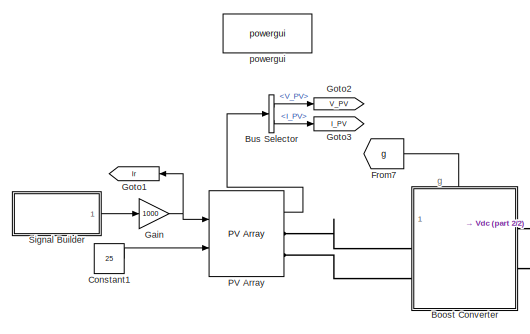
[diagram: root canvas - part 1/2, top left region]
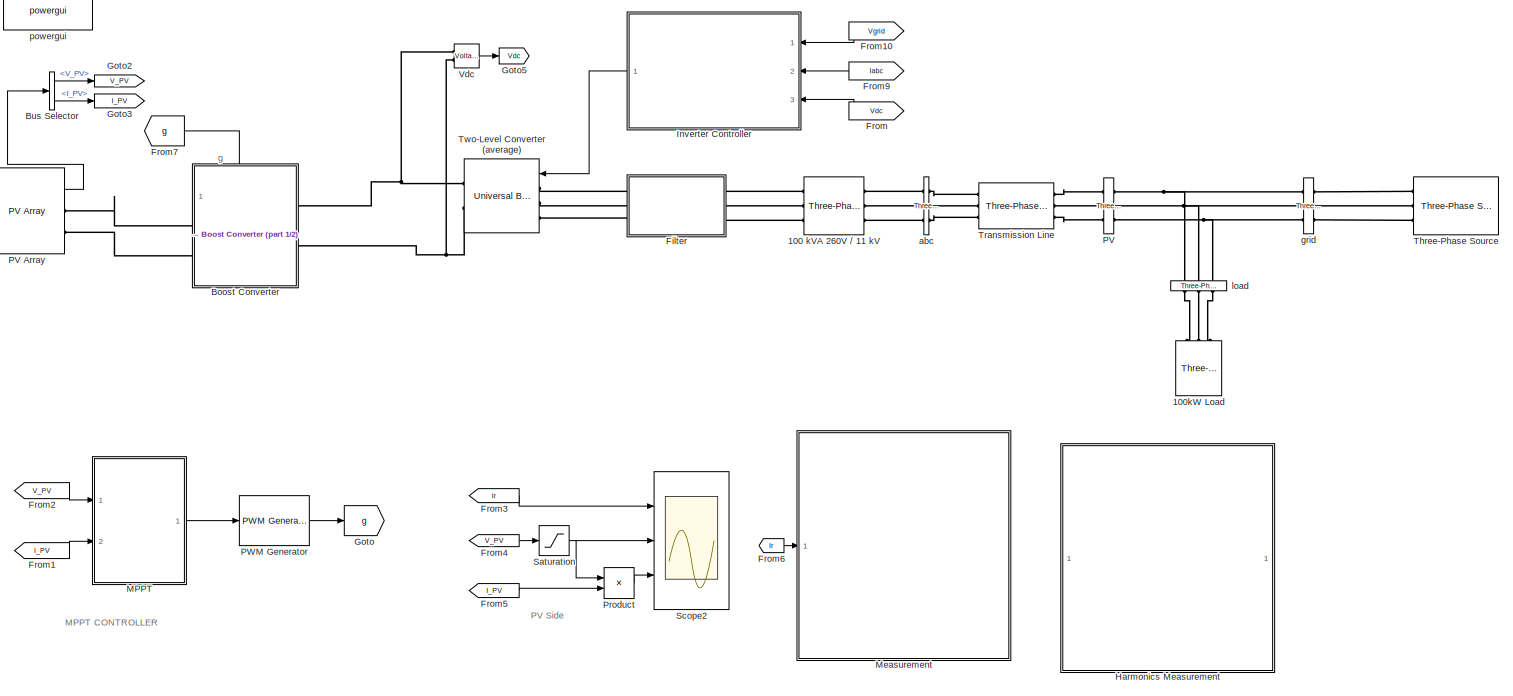
[diagram: root canvas - part 2/2, most of the canvas]
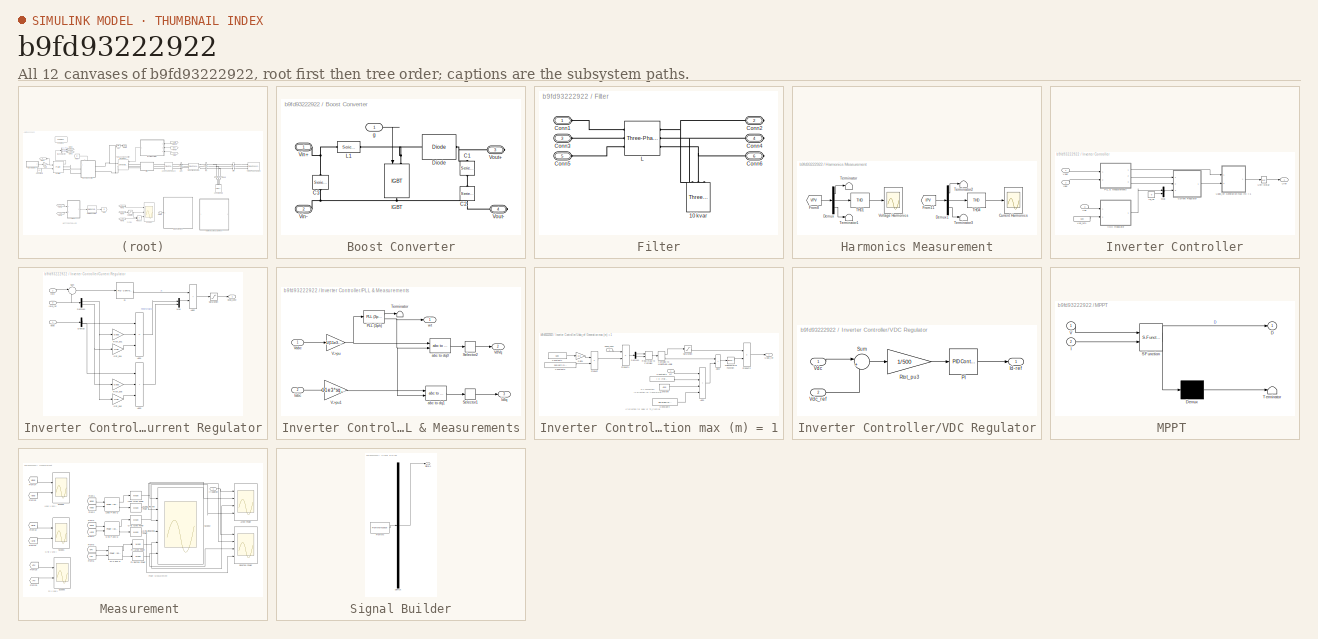
[diagram: thumbnail index - all 12 canvases of the model, root first then tree order]
MODEL slx_b9fd93222922
KIND model
CONFIG AbsTol = auto
CONFIG EnableMultiTasking = off
CONFIG FixedStep = auto
CONFIG MaxStep = auto
CONFIG MinStep = auto
CONFIG RelTol = 1e-3
CONFIG SampleTimeConstraint = Unconstrained
CONFIG SolverName = VariableStepAuto
CONFIG StartTime = 0.0
CONFIG StopTime = 10
BLOCK [Reference] 100 kVA 260V // 11 kV  REF=spsThreePhaseTransformerTwoWindingsLib/Three-Phase
Transformer
(Two Windings)
  AttributesFormatString = \n
  Ports = [0, 0, 0, 0, 0, 3, 3]
  SourceBlock = spsThreePhaseTransformerTwoWindingsLib/Three-Phase\nTransformer\n(Two Windings)
  SourceProductBaseCode = PS
  SourceType = Three-Phase Transformer (Two Windings)
BLOCK [Reference] 100kW Load  REF=spsThreePhaseParallelRLCLoadLib/Three-Phase
Parallel RLC Load
  AttributesFormatString = \n
  NameLocation = right
  Ports = [0, 0, 0, 0, 0, 3]
  SourceBlock = spsThreePhaseParallelRLCLoadLib/Three-Phase\nParallel RLC Load
  SourceProductBaseCode = PS
  SourceType = Three-Phase Parallel RLC Load
BLOCK [SubSystem] Boost Converter
  PortSchema = {"entries":[{"content":{"sides":[{"content":{"connectorIds":["LConn1","LConn2"]},"type":"ConnectorPlacement.EquallySpacedRectSide","uuid":"47139609-9da0-487f-b3c1-66b1e6abf5f1"},{"content":{"connectorIds":["RConn1","RConn2"],"side":"RIGHT"},"type":"ConnectorPlacement.EquallySpacedRectSide","uuid":"7d163bfc-2439-4f5f-a655-df1969a60e03"},{"content":{"connectorIds":["In1"],"side":"TOP"},"type":"Conne...<+268ch>
  Ports = [1, 0, 0, 0, 0, 2, 2]
  RequestExecContextInheritance = off
BLOCK [Reference] Boost Converter/C1  REF=spsSeriesRLCBranchLib/Series RLC Branch
  AttributesFormatString = \n
  NameLocation = left
  Ports = [0, 0, 0, 0, 0, 1, 1]
  SourceBlock = spsSeriesRLCBranchLib/Series RLC Branch
  SourceProductBaseCode = PS
  SourceType = Series RLC Branch
BLOCK [Reference] Boost Converter/C2  REF=spsSeriesRLCBranchLib/Series RLC Branch
  AttributesFormatString = \n
  NameLocation = left
  Ports = [0, 0, 0, 0, 0, 1, 1]
  SourceBlock = spsSeriesRLCBranchLib/Series RLC Branch
  SourceProductBaseCode = PS
  SourceType = Series RLC Branch
BLOCK [Reference] Boost Converter/C3  REF=spsSeriesRLCBranchLib/Series RLC Branch
  AttributesFormatString = \n
  NameLocation = left
  Ports = [0, 0, 0, 0, 0, 1, 1]
  SourceBlock = spsSeriesRLCBranchLib/Series RLC Branch
  SourceProductBaseCode = PS
  SourceType = Series RLC Branch
BLOCK [Reference] Boost Converter/Diode  REF=spsDiodeLib/Diode
  Ports = [0, 0, 0, 0, 0, 1, 1]
  SourceBlock = spsDiodeLib/Diode
  SourceProductBaseCode = PS
  SourceType = Diode
BLOCK [Reference] Boost Converter/IGBT  REF=spsIGBTLib/IGBT
  NameLocation = left
  Ports = [1, 0, 0, 0, 0, 1, 1]
  SourceBlock = spsIGBTLib/IGBT
  SourceProductBaseCode = PS
  SourceType = IGBT
BLOCK [Reference] Boost Converter/L1  REF=spsSeriesRLCBranchLib/Series RLC Branch
  Ports = [0, 0, 0, 0, 0, 1, 1]
  SourceBlock = spsSeriesRLCBranchLib/Series RLC Branch
  SourceProductBaseCode = PS
  SourceType = Series RLC Branch
BLOCK [PMIOPort] Boost Converter/Vin+
  NameLocation = top
  Side = Left
BLOCK [PMIOPort] Boost Converter/Vin-
  NameLocation = top
  Port = 2
  Side = Left
BLOCK [PMIOPort] Boost Converter/Vout+
  Port = 3
  Side = Right
BLOCK [PMIOPort] Boost Converter/Vout-
  Port = 4
  Side = Right
BLOCK [Inport] Boost Converter/g
BLOCK [BusSelector] Bus Selector
  OutputSignals = V_PV,I_PV
  Ports = [1, 2]
BLOCK [Constant] Constant1
  Value = 25
BLOCK [SubSystem] Filter
  Ports = [0, 0, 0, 0, 0, 3, 3]
  RequestExecContextInheritance = off
BLOCK [Reference] Filter/10 kvar  REF=spsThreePhaseSeriesRLCLoadLib/Three-Phase
Series RLC Load
  AttributesFormatString = \n
  NameLocation = right
  Ports = [0, 0, 0, 0, 0, 3]
  SourceBlock = spsThreePhaseSeriesRLCLoadLib/Three-Phase\nSeries RLC Load
  SourceProductBaseCode = PS
  SourceType = Three-Phase Series RLC Load
BLOCK [PMIOPort] Filter/Conn1
  Side = Left
BLOCK [PMIOPort] Filter/Conn2
  Port = 2
  Side = Right
BLOCK [PMIOPort] Filter/Conn3
  Port = 3
  Side = Left
BLOCK [PMIOPort] Filter/Conn4
  Port = 4
  Side = Right
BLOCK [PMIOPort] Filter/Conn5
  Port = 5
  Side = Left
BLOCK [PMIOPort] Filter/Conn6
  Port = 6
  Side = Right
BLOCK [Reference] Filter/L  REF=spsThreePhaseSeriesRLCBranchLib/Three-Phase
Series RLC Branch
  AttributesFormatString = \n
  Ports = [0, 0, 0, 0, 0, 3, 3]
  SourceBlock = spsThreePhaseSeriesRLCBranchLib/Three-Phase\nSeries RLC Branch
  SourceProductBaseCode = PS
  SourceType = Three-Phase Series RLC Branch
BLOCK [From] From
  GotoTag = Vdc
  TagVisibility = global
BLOCK [From] From1
  CloseFcn = tagdialog Close
  GotoTag = I_PV
BLOCK [From] From10
  CloseFcn = tagdialog Close
  GotoTag = Vgrid
  TagVisibility = global
BLOCK [From] From2
  CloseFcn = tagdialog Close
  GotoTag = V_PV
BLOCK [From] From3
  GotoTag = Ir
  NameLocation = top
BLOCK [From] From4
  GotoTag = V_PV
BLOCK [From] From5
  GotoTag = I_PV
BLOCK [From] From6
  GotoTag = Ir
  NameLocation = top
BLOCK [From] From7
  GotoTag = g
BLOCK [From] From9
  CloseFcn = tagdialog Close
  GotoTag = Iabc
  TagVisibility = global
BLOCK [Gain] Gain
  Gain = 1000
BLOCK [Goto] Goto
  GotoTag = g
BLOCK [Goto] Goto1
  GotoTag = Ir
  NameLocation = top
BLOCK [Goto] Goto2
  GotoTag = V_PV
BLOCK [Goto] Goto3
  GotoTag = I_PV
BLOCK [Goto] Goto5
  GotoTag = Vdc
  TagVisibility = global
BLOCK [SubSystem] Harmonics Measurement
  Ports = []
  RequestExecContextInheritance = off
BLOCK [Scope] Harmonics Measurement/Current Harmonics
  Floating = off
  NumInputPorts = 1
  Ports = [1]
  ScopeSpecificationString = Simulink.scopes.TimeScopeBlockCfg('CurrentConfiguration', extmgr.ConfigurationSet(extmgr.Configuration('Core','General UI',true,'FigureColor',[1 1 1]),extmgr.Configuration('Core','Source UI',true),extmgr.Configuration('Sources','WiredSimulink',true,'DataLoggingVariableName','ScopeData3'),extmgr.Configuration('Visuals','Time Domain',true,'SerializedDisplays',{struct('MinYLimReal','-0.25692','MaxYLi...<+2230ch>
BLOCK [Demux] Harmonics Measurement/Demux
  Outputs = 3
  Ports = [1, 3]
BLOCK [Demux] Harmonics Measurement/Demux1
  Outputs = 3
  Ports = [1, 3]
BLOCK [From] Harmonics Measurement/From11
  GotoTag = IPV
  TagVisibility = global
BLOCK [From] Harmonics Measurement/From8
  GotoTag = VPV
  TagVisibility = global
BLOCK [Reference] Harmonics Measurement/THD1  REF=spsTHDLib/THD
  Ports = [1, 1]
  SourceBlock = spsTHDLib/THD
  SourceProductBaseCode = PS
  SourceType = THD
BLOCK [Reference] Harmonics Measurement/THD4  REF=spsTHDLib/THD
  Ports = [1, 1]
  SourceBlock = spsTHDLib/THD
  SourceProductBaseCode = PS
  SourceType = THD
BLOCK [Terminator] Harmonics Measurement/Terminator
BLOCK [Terminator] Harmonics Measurement/Terminator1
BLOCK [Terminator] Harmonics Measurement/Terminator2
BLOCK [Terminator] Harmonics Measurement/Terminator3
BLOCK [Scope] Harmonics Measurement/Voltage Harmonics
  Floating = off
  NumInputPorts = 1
  Ports = [1]
  ScopeSpecificationString = Simulink.scopes.TimeScopeBlockCfg('CurrentConfiguration', extmgr.ConfigurationSet(extmgr.Configuration('Core','General UI',true,'FigureColor',[1 1 1]),extmgr.Configuration('Core','Source UI',true),extmgr.Configuration('Sources','WiredSimulink',true,'DataLoggingVariableName','ScopeData2'),extmgr.Configuration('Visuals','Time Domain',true,'SerializedDisplays',{struct('MinYLimReal','-0.00154','MaxYLi...<+2230ch>
BLOCK [SubSystem] Inverter Controller
  Ports = [3, 1]
  RequestExecContextInheritance = off
BLOCK [SubSystem] Inverter Controller/Current Regulator
  Ports = [3, 1]
  RequestExecContextInheritance = off
BLOCK [Sum] Inverter Controller/Current Regulator/Add1
  IconShape = rectangular
  Inputs = ++-
  Ports = [3, 1]
BLOCK [Sum] Inverter Controller/Current Regulator/Add2
  IconShape = rectangular
  Ports = [2, 1]
BLOCK [Sum] Inverter Controller/Current Regulator/Add3
  IconShape = rectangular
  Inputs = +++
  Ports = [3, 1]
BLOCK [Demux] Inverter Controller/Current Regulator/Demux
  Outputs = 2
  Ports = [1, 2]
BLOCK [Demux] Inverter Controller/Current Regulator/Demux1
  Outputs = 2
  Ports = [1, 2]
BLOCK [Inport] Inverter Controller/Current Regulator/IdIq
  Port = 2
  PortDimensions = 2
BLOCK [Inport] Inverter Controller/Current Regulator/IdIq_ref
  Port = 3
  PortDimensions = 2
BLOCK [Gain] Inverter Controller/Current Regulator/Ltot_pu1
  Gain = 0.06
  OutDataTypeStr = Inherit: Same as input
  ParamDataTypeStr = Inherit: Same as input
  SaturateOnIntegerOverflow = on
BLOCK [Gain] Inverter Controller/Current Regulator/Ltot_pu2
  Gain = 0.06
  OutDataTypeStr = Inherit: Same as input
  ParamDataTypeStr = Inherit: Same as input
  SaturateOnIntegerOverflow = on
BLOCK [Mux] Inverter Controller/Current Regulator/Mux
  DisplayOption = bar
  Inputs = 2
  Ports = [2, 1]
BLOCK [Reference] Inverter Controller/Current Regulator/PI  REF=pid_lib/PID Controller
  Ports = [1, 1]
  SourceBlock = pid_lib/PID Controller
  SourceProductBaseCode = SL
  SourceType = PID 1dof
BLOCK [Gain] Inverter Controller/Current Regulator/Rtot_pu1
  Gain = 0.002
  NameLocation = top
  OutDataTypeStr = Inherit: Same as input
  ParamDataTypeStr = Inherit: Same as input
  SaturateOnIntegerOverflow = on
BLOCK [Gain] Inverter Controller/Current Regulator/Rtot_pu5
  Gain = 0.002
  NameLocation = top
  OutDataTypeStr = Inherit: Same as input
  ParamDataTypeStr = Inherit: Same as input
  SaturateOnIntegerOverflow = on
BLOCK [Saturate] Inverter Controller/Current Regulator/Saturation
  LowerLimit = -2
  UpperLimit = 2
BLOCK [Sum] Inverter Controller/Current Regulator/Sum
  Inputs = |-+
  Ports = [2, 1]
BLOCK [Inport] Inverter Controller/Current Regulator/VdVq
  PortDimensions = 2
BLOCK [Outport] Inverter Controller/Current Regulator/VdVq_conv
  VectorParamsAs1DForOutWhenUnconnected = off
BLOCK [Inport] Inverter Controller/Iabc
  Port = 2
  PortDimensions = 3
BLOCK [Constant] Inverter Controller/Iq_ref
  Value = 0
BLOCK [Mux] Inverter Controller/Mux
  DisplayOption = bar
  Inputs = 2
  Ports = [2, 1]
BLOCK [SubSystem] Inverter Controller/PLL & Measurements
  Ports = [2, 3]
  RequestExecContextInheritance = off
BLOCK [Inport] Inverter Controller/PLL & Measurements/Iabc
  Port = 2
BLOCK [Outport] Inverter Controller/PLL & Measurements/IdIq
  Port = 3
  VectorParamsAs1DForOutWhenUnconnected = off
BLOCK [Reference] Inverter Controller/PLL & Measurements/PLL (3ph)  REF=spsPLL3phLib/PLL
(3ph)
  Ports = [1, 2]
  SourceBlock = spsPLL3phLib/PLL\n(3ph)
  SourceProductBaseCode = PS
  SourceType = PLL (3ph)
BLOCK [Selector] Inverter Controller/PLL & Measurements/Selector1
  IndexOptions = Index vector (dialog)
  Indices = [1 2]
  InputPortWidth = 3
  OutputSizes = 1
  Ports = [1, 1]
BLOCK [Selector] Inverter Controller/PLL & Measurements/Selector2
  IndexOptions = Index vector (dialog)
  Indices = [1 2]
  InputPortWidth = 3
  OutputSizes = 1
  Ports = [1, 1]
BLOCK [Terminator] Inverter Controller/PLL & Measurements/Terminator
BLOCK [Gain] Inverter Controller/PLL & Measurements/V->pu
  Gain = 1/(11e3*sqrt(2)/sqrt(3))
  OutDataTypeStr = Inherit: Same as input
  ParamDataTypeStr = Inherit: Same as input
  SaturateOnIntegerOverflow = on
BLOCK [Gain] Inverter Controller/PLL & Measurements/V->pu1
  Gain = 11e3*sqrt(3)/100e3/sqrt(2)
  OutDataTypeStr = Inherit: Same as input
  ParamDataTypeStr = Inherit: Same as input
  SaturateOnIntegerOverflow = on
BLOCK [Inport] Inverter Controller/PLL & Measurements/Vabc
BLOCK [Outport] Inverter Controller/PLL & Measurements/VdVq
  Port = 2
  VectorParamsAs1DForOutWhenUnconnected = off
BLOCK [Reference] Inverter Controller/PLL & Measurements/abc to dq0  REF=spsabctodq0Lib/abc to dq0
  Ports = [2, 1]
  SourceBlock = spsabctodq0Lib/abc to dq0
  SourceProductBaseCode = PS
  SourceType = abc to dq0 Transformation
BLOCK [Reference] Inverter Controller/PLL & Measurements/abc to dq1  REF=spsabctodq0Lib/abc to dq0
  Ports = [2, 1]
  SourceBlock = spsabctodq0Lib/abc to dq0
  SourceProductBaseCode = PS
  SourceType = abc to dq0 Transformation
BLOCK [Outport] Inverter Controller/PLL & Measurements/wt
  VectorParamsAs1DForOutWhenUnconnected = off
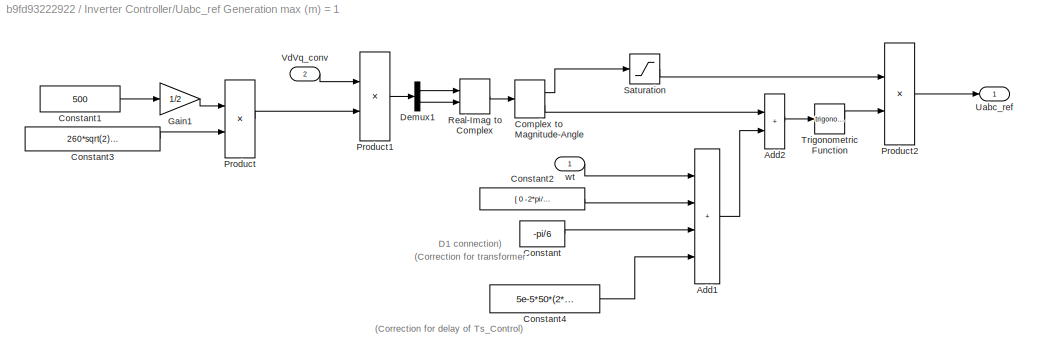
BLOCK [SubSystem] Inverter Controller/Uabc_ref Generation max (m) = 1
  Ports = [2, 1]
  RequestExecContextInheritance = off
BLOCK [Sum] Inverter Controller/Uabc_ref Generation max (m) = 1/Add1
  IconShape = rectangular
  Inputs = ++++
  Ports = [4, 1]
BLOCK [Sum] Inverter Controller/Uabc_ref Generation max (m) = 1/Add2
  IconShape = rectangular
  Ports = [2, 1]
BLOCK [ComplexToMagnitudeAngle] Inverter Controller/Uabc_ref Generation max (m) = 1/Complex to Magnitude-Angle
  Ports = [1, 2]
BLOCK [Constant] Inverter Controller/Uabc_ref Generation max (m) = 1/Constant
  Value = -pi/6
BLOCK [Constant] Inverter Controller/Uabc_ref Generation max (m) = 1/Constant1
  Value = 500
BLOCK [Constant] Inverter Controller/Uabc_ref Generation max (m) = 1/Constant2
  Value = [ 0  -2*pi/3  2*pi/3  ]
BLOCK [Constant] Inverter Controller/Uabc_ref Generation max (m) = 1/Constant3
  Value = 260*sqrt(2)/sqrt(3)
BLOCK [Constant] Inverter Controller/Uabc_ref Generation max (m) = 1/Constant4
  Value = 5e-5*50*(2*pi)
BLOCK [Demux] Inverter Controller/Uabc_ref Generation max (m) = 1/Demux1
  Outputs = 2
  Ports = [1, 2]
BLOCK [Gain] Inverter Controller/Uabc_ref Generation max (m) = 1/Gain1
  Gain = 1/2
BLOCK [Product] Inverter Controller/Uabc_ref Generation max (m) = 1/Product
  Inputs = */
  Ports = [2, 1]
  RndMeth = Zero
BLOCK [Product] Inverter Controller/Uabc_ref Generation max (m) = 1/Product1
  Inputs = */
  Ports = [2, 1]
  RndMeth = Zero
BLOCK [Product] Inverter Controller/Uabc_ref Generation max (m) = 1/Product2
  Inputs = **
  Ports = [2, 1]
  RndMeth = Zero
BLOCK [RealImagToComplex] Inverter Controller/Uabc_ref Generation max (m) = 1/Real-Imag to Complex
  Ports = [2, 1]
BLOCK [Saturate] Inverter Controller/Uabc_ref Generation max (m) = 1/Saturation
  LowerLimit = 0
  UpperLimit = 1
BLOCK [Trigonometry] Inverter Controller/Uabc_ref Generation max (m) = 1/Trigonometric Function
  Ports = [1, 1]
BLOCK [Outport] Inverter Controller/Uabc_ref Generation max (m) = 1/Uabc_ref
  VectorParamsAs1DForOutWhenUnconnected = off
BLOCK [Inport] Inverter Controller/Uabc_ref Generation max (m) = 1/VdVq_conv
  Port = 2
BLOCK [Inport] Inverter Controller/Uabc_ref Generation max (m) = 1/wt
BLOCK [UnitDelay] Inverter Controller/Unit Delay
  HasFrameUpgradeWarning = on
  SampleTime = 5e-5
BLOCK [Outport] Inverter Controller/Uref
  NameLocation = top
  VectorParamsAs1DForOutWhenUnconnected = off
BLOCK [SubSystem] Inverter Controller/VDC Regulator
  Ports = [2, 1]
  RequestExecContextInheritance = off
BLOCK [Outport] Inverter Controller/VDC Regulator/Id-ref
BLOCK [Reference] Inverter Controller/VDC Regulator/PI  REF=pid_lib/PID Controller
  Ports = [1, 1]
  SourceBlock = pid_lib/PID Controller
  SourceProductBaseCode = SL
  SourceType = PID 1dof
BLOCK [Gain] Inverter Controller/VDC Regulator/Rtot_pu3
  Gain = 1/500
  OutDataTypeStr = Inherit: Same as input
  ParamDataTypeStr = Inherit: Same as input
  SaturateOnIntegerOverflow = on
BLOCK [Sum] Inverter Controller/VDC Regulator/Sum
  Inputs = |+-
  Ports = [2, 1]
BLOCK [Inport] Inverter Controller/VDC Regulator/Vdc
  PortDimensions = 1
BLOCK [Inport] Inverter Controller/VDC Regulator/Vdc_ref
  Port = 2
  PortDimensions = 1
BLOCK [Inport] Inverter Controller/Vabc
  PortDimensions = 3
BLOCK [Inport] Inverter Controller/Vdc
  Port = 3
  PortDimensions = 1
BLOCK [Constant] Inverter Controller/Vdc_ref1
  Value = 500
BLOCK [SubSystem] MPPT 
  ErrorFcn = Stateflow.Translate.translate
  PermitHierarchicalResolution = ExplicitOnly
  Ports = [2, 1]
  RequestExecContextInheritance = off
  SFBlockType = MATLAB Function
  TreatAsAtomicUnit = on
BLOCK [Demux] MPPT / Demux 
  Outputs = 1
  Ports = [1, 1]
BLOCK [S-Function] MPPT / SFunction 
  EnableBusSupport = on
  FunctionName = sf_sfun
  PortCounts = [2 2]
  Ports = [2, 2]
  SFcnIsStateOwnerBlock = off
  SFunctionDeploymentMode = off
  Tag = Stateflow S-Function 4
BLOCK [Terminator] MPPT / Terminator 
BLOCK [Outport] MPPT /D
  VectorParamsAs1DForOutWhenUnconnected = off
BLOCK [Inport] MPPT /I
  Port = 2
BLOCK [Inport] MPPT /V
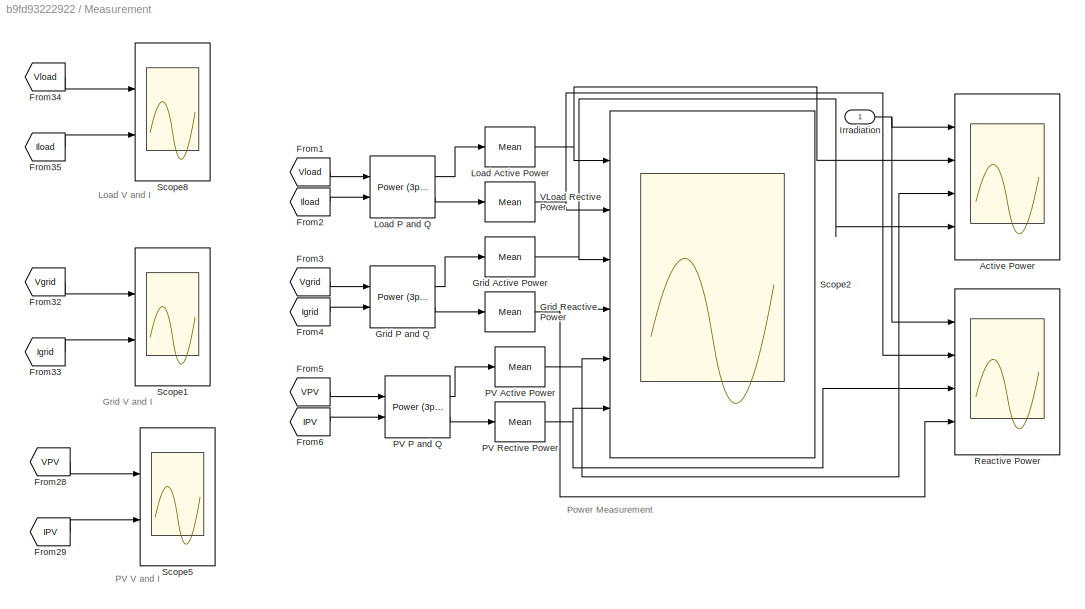
BLOCK [SubSystem] Measurement 
  Ports = [1]
  RequestExecContextInheritance = off
BLOCK [Scope] Measurement /Active Power
  Floating = off
  NumInputPorts = 4
  Ports = [4]
  ScopeSpecificationString = Simulink.scopes.TimeScopeBlockCfg('CurrentConfiguration', extmgr.ConfigurationSet(extmgr.Configuration('Core','General UI',true,'FigureColor',[1 1 1]),extmgr.Configuration('Core','Source UI',true),extmgr.Configuration('Sources','WiredSimulink',true,'DataLoggingVariableName','power','DataLogging',true,'DataLoggingSaveFormat','StructureWithTime'),extmgr.Configuration('Visuals','Time Domain',true,'Se...<+4727ch>
BLOCK [From] Measurement /From1
  GotoTag = Vload
  TagVisibility = global
BLOCK [From] Measurement /From2
  GotoTag = Iload
  TagVisibility = global
BLOCK [From] Measurement /From28
  GotoTag = VPV
  TagVisibility = global
BLOCK [From] Measurement /From29
  GotoTag = IPV
  TagVisibility = global
BLOCK [From] Measurement /From3
  GotoTag = Vgrid
  TagVisibility = global
BLOCK [From] Measurement /From32
  GotoTag = Vgrid
  TagVisibility = global
BLOCK [From] Measurement /From33
  GotoTag = Igrid
  TagVisibility = global
BLOCK [From] Measurement /From34
  GotoTag = Vload
  TagVisibility = global
BLOCK [From] Measurement /From35
  GotoTag = Iload
  TagVisibility = global
BLOCK [From] Measurement /From4
  GotoTag = Igrid
  TagVisibility = global
BLOCK [From] Measurement /From5
  GotoTag = VPV
  TagVisibility = global
BLOCK [From] Measurement /From6
  GotoTag = IPV
  TagVisibility = global
BLOCK [Reference] Measurement /Grid Active Power  REF=spsMeanLib/Mean
  Ports = [1, 1]
  SourceBlock = spsMeanLib/Mean
  SourceProductBaseCode = PS
  SourceType = Mean
BLOCK [Reference] Measurement /Grid P and Q  REF=spsPower3phInstantaneousLib/Power
(3ph, Instantaneous)
  Ports = [2, 2]
  SourceBlock = spsPower3phInstantaneousLib/Power\n(3ph, Instantaneous)
  SourceProductBaseCode = PS
  SourceType = Power (3ph, Instantaneous)
BLOCK [Reference] Measurement /Grid Reactive Power  REF=spsMeanLib/Mean
  Ports = [1, 1]
  SourceBlock = spsMeanLib/Mean
  SourceProductBaseCode = PS
  SourceType = Mean
BLOCK [Inport] Measurement /Irradiation
BLOCK [Reference] Measurement /Load Active Power  REF=spsMeanLib/Mean
  Ports = [1, 1]
  SourceBlock = spsMeanLib/Mean
  SourceProductBaseCode = PS
  SourceType = Mean
BLOCK [Reference] Measurement /Load P and Q  REF=spsPower3phInstantaneousLib/Power
(3ph, Instantaneous)
  Ports = [2, 2]
  SourceBlock = spsPower3phInstantaneousLib/Power\n(3ph, Instantaneous)
  SourceProductBaseCode = PS
  SourceType = Power (3ph, Instantaneous)
BLOCK [Reference] Measurement /PV Active Power  REF=spsMeanLib/Mean
  Ports = [1, 1]
  SourceBlock = spsMeanLib/Mean
  SourceProductBaseCode = PS
  SourceType = Mean
BLOCK [Reference] Measurement /PV P and Q  REF=spsPower3phInstantaneousLib/Power
(3ph, Instantaneous)
  Ports = [2, 2]
  SourceBlock = spsPower3phInstantaneousLib/Power\n(3ph, Instantaneous)
  SourceProductBaseCode = PS
  SourceType = Power (3ph, Instantaneous)
BLOCK [Reference] Measurement /PV Rective Power  REF=spsMeanLib/Mean
  Ports = [1, 1]
  SourceBlock = spsMeanLib/Mean
  SourceProductBaseCode = PS
  SourceType = Mean
BLOCK [Scope] Measurement /Reactive Power
  Floating = off
  NumInputPorts = 4
  Ports = [4]
  ScopeSpecificationString = Simulink.scopes.TimeScopeBlockCfg('CurrentConfiguration', extmgr.ConfigurationSet(extmgr.Configuration('Core','General UI',true,'FigureColor',[1 1 1]),extmgr.Configuration('Core','Source UI',true),extmgr.Configuration('Sources','WiredSimulink',true,'DataLoggingVariableName','power1','DataLogging',true,'DataLoggingSaveFormat','StructureWithTime'),extmgr.Configuration('Visuals','Time Domain',true,'S...<+4734ch>
BLOCK [Scope] Measurement /Scope1
  Floating = off
  NumInputPorts = 2
  Ports = [2]
  ScopeSpecificationString = Simulink.scopes.TimeScopeBlockCfg('CurrentConfiguration', extmgr.ConfigurationSet(extmgr.Configuration('Core','General UI',true,'FigureColor',[1 1 1]),extmgr.Configuration('Core','Source UI',true),extmgr.Configuration('Sources','WiredSimulink',true,'DataLoggingVariableName','ScopeData1'),extmgr.Configuration('Visuals','Time Domain',true,'SerializedDisplays',{struct('MinYLimReal','-11050.31813','Ma...<+3884ch>
BLOCK [Scope] Measurement /Scope2
  Floating = off
  NumInputPorts = 6
  Ports = [6]
  ScopeSpecificationString = Simulink.scopes.TimeScopeBlockCfg('CurrentConfiguration', extmgr.ConfigurationSet(extmgr.Configuration('Core','General UI',true,'FigureColor',[1 1 1]),extmgr.Configuration('Core','Source UI',true),extmgr.Configuration('Sources','WiredSimulink',true,'DataLoggingVariableName','ScopeData1'),extmgr.Configuration('Visuals','Time Domain',true,'SerializedDisplays',{struct('MinYLimReal','-12580.85549','Ma...<+6473ch>
BLOCK [Scope] Measurement /Scope5
  Floating = off
  NumInputPorts = 2
  Ports = [2]
  ScopeSpecificationString = Simulink.scopes.TimeScopeBlockCfg('CurrentConfiguration', extmgr.ConfigurationSet(extmgr.Configuration('Core','General UI',true,'FigureColor',[1 1 1]),extmgr.Configuration('Core','Source UI',true),extmgr.Configuration('Sources','WiredSimulink',true,'DataLoggingVariableName','ScopeData2'),extmgr.Configuration('Visuals','Time Domain',true,'SerializedDisplays',{struct('MinYLimReal','-18119.42614','Ma...<+3884ch>
BLOCK [Scope] Measurement /Scope8
  Floating = off
  NumInputPorts = 2
  Ports = [2]
  ScopeSpecificationString = Simulink.scopes.TimeScopeBlockCfg('CurrentConfiguration', extmgr.ConfigurationSet(extmgr.Configuration('Core','General UI',true,'FigureColor',[1 1 1]),extmgr.Configuration('Core','Source UI',true),extmgr.Configuration('Sources','WiredSimulink',true),extmgr.Configuration('Visuals','Time Domain',true,'SerializedDisplays',{struct('MinYLimReal','-11284.33495','MaxYLimReal','11277.36542','YLabelReal','...<+3845ch>
BLOCK [Reference] Measurement /VLoad Rective Power  REF=spsMeanLib/Mean
  Ports = [1, 1]
  SourceBlock = spsMeanLib/Mean
  SourceProductBaseCode = PS
  SourceType = Mean
BLOCK [Reference] PV  REF=spsThreePhaseVIMeasurementLib/Three-Phase
V-I Measurement
  Ports = [0, 0, 0, 0, 0, 3, 3]
  SourceBlock = spsThreePhaseVIMeasurementLib/Three-Phase\nV-I Measurement
  SourceProductBaseCode = PS
  SourceType = Three-Phase VI Measurement
BLOCK [Reference] PV Array  REF=spsPVArrayLib/PV Array
  Ports = [2, 1, 0, 0, 0, 0, 2]
  SourceBlock = spsPVArrayLib/PV Array
  SourceProductBaseCode = PS
  SourceType = PV array
BLOCK [Reference] PWM Generator  REF=eePwmGenerator/PWM Generator
  Ports = [1, 1]
  SourceBlock = eePwmGenerator/PWM Generator
  SourceProductBaseCode = PS
  SourceType = PWM Generator
BLOCK [Product] Product
  Ports = [2, 1]
BLOCK [Saturate] Saturation
  LowerLimit = 280
  UpperLimit = 285
BLOCK [Scope] Scope2
  Floating = off
  NumInputPorts = 3
  Ports = [3]
  ScopeSpecificationString = Simulink.scopes.TimeScopeBlockCfg('CurrentConfiguration', extmgr.ConfigurationSet(extmgr.Configuration('Core','General UI',true,'FigureColor',[1 1 1]),extmgr.Configuration('Core','Source UI',true),extmgr.Configuration('Sources','WiredSimulink',true,'DataLoggingVariableName','ScopeData4','SampleTime','5e-6'),extmgr.Configuration('Visuals','Time Domain',true,'SerializedDisplays',{struct('MinYLimReal...<+4596ch>
BLOCK [SubSystem] Signal Builder
  ClipboardFcn = sigbuilder_block('clipboard');
  CloseFcn = sigbuilder_block('close');
  ContinueFcn = sigbuilder_block('continue');
  CopyFcn = sigbuilder_block('copy');
  DeleteFcn = sigbuilder_block('delete');
  LoadFcn = sigbuilder_block('load');
  MaskHideContents = on
  ModelCloseFcn = sigbuilder_block('modelClose');
  NameChangeFcn = sigbuilder_block('namechange');
  OpenFcn = sigbuilder_block('open',[437.6 199.2 550.4 400 ]);
  PauseFcn = sigbuilder_block('pause');
  Ports = [0, 1]
  PreSaveFcn = sigbuilder_block('preSave');
  RequestExecContextInheritance = off
  StartFcn = sigbuilder_block('start');
  StopFcn = sigbuilder_block('stop');
  Tag = STV Subsys
BLOCK [Demux] Signal Builder/Demux
  DisplayOption = none
  Outputs = 1
  Ports = [1, 1]
  Tag = STV Demux
BLOCK [FromWorkspace] Signal Builder/FromWs
  Tag = STV FromWs
  VariableName = tuvar
BLOCK [Outport] Signal Builder/Signal 1
  Tag = STV Outport
BLOCK [Reference] Three-Phase Source  REF=spsThreePhaseSourceLib/Three-Phase Source
  NameLocation = top
  Ports = [0, 0, 0, 0, 0, 0, 3]
  SourceBlock = spsThreePhaseSourceLib/Three-Phase Source
  SourceProductBaseCode = PS
  SourceType = Three-Phase Source
BLOCK [Reference] Transmission Line  REF=spsThreePhasePISectionLineLib/Three-Phase
PI Section Line
  AttributesFormatString = \n
  Ports = [0, 0, 0, 0, 0, 3, 3]
  SourceBlock = spsThreePhasePISectionLineLib/Three-Phase\nPI Section Line
  SourceProductBaseCode = PS
  SourceType = Three-Phase PI Section Line
BLOCK [Reference] Two-Level Converter (average)  REF=spsUniversalBridgeLib/Universal Bridge
  Ports = [1, 0, 0, 0, 0, 3, 2]
  SourceBlock = spsUniversalBridgeLib/Universal Bridge
  SourceProductBaseCode = PS
  SourceType = Universal Bridge
BLOCK [Reference] Vdc   REF=spsVoltageMeasurementLib/Voltage Measurement
  AttributesFormatString = \n
  NameLocation = top
  Ports = [0, 1, 0, 0, 0, 2]
  SourceBlock = spsVoltageMeasurementLib/Voltage Measurement
  SourceProductBaseCode = PS
  SourceType = Voltage Measurement
  Tag = PoWeRsYsTeMmEaSuReMeNt
BLOCK [Reference] abc  REF=spsThreePhaseVIMeasurementLib/Three-Phase
V-I Measurement
  Ports = [0, 0, 0, 0, 0, 3, 3]
  SourceBlock = spsThreePhaseVIMeasurementLib/Three-Phase\nV-I Measurement
  SourceProductBaseCode = PS
  SourceType = Three-Phase VI Measurement
BLOCK [Reference] grid  REF=spsThreePhaseVIMeasurementLib/Three-Phase
V-I Measurement
  Ports = [0, 0, 0, 0, 0, 3, 3]
  SourceBlock = spsThreePhaseVIMeasurementLib/Three-Phase\nV-I Measurement
  SourceProductBaseCode = PS
  SourceType = Three-Phase VI Measurement
BLOCK [Reference] load  REF=spsThreePhaseVIMeasurementLib/Three-Phase
V-I Measurement
  NameLocation = left
  Ports = [0, 0, 0, 0, 0, 3, 3]
  SourceBlock = spsThreePhaseVIMeasurementLib/Three-Phase\nV-I Measurement
  SourceProductBaseCode = PS
  SourceType = Three-Phase VI Measurement
BLOCK [Reference] powergui  REF=spspowerguiLib/powergui
  Ports = []
  Priority = 1
  SourceBlock = spspowerguiLib/powergui
  SourceProductBaseCode = PS
  SourceType = PSB option menu block
ANNOTATION (root): MPPT CONTROLLER
ANNOTATION (root): PV Side
ANNOTATION (root): g
ANNOTATION Inverter Controller/Uabc_ref Generation max (m) = 1: (Correction for delay of Ts_Control)
ANNOTATION Inverter Controller/Uabc_ref Generation max (m) = 1: (Correction for transformer D1 connection)
ANNOTATION Measurement : Grid V and I
ANNOTATION Measurement : Load V and I
ANNOTATION Measurement : PV V and I
ANNOTATION Measurement : Power Measurement
LINE Boost Converter/g:1 -> Boost Converter/IGBT:1
LINE Bus Selector:1 -> Goto2:1
LINE Bus Selector:2 -> Goto3:1
LINE Constant1:1 -> PV Array:2
LINE From10:1 -> Inverter Controller:1
LINE From1:1 -> MPPT :2
LINE From2:1 -> MPPT :1
LINE From3:1 -> Scope2:1
LINE From4:1 -> Saturation:1
LINE From5:1 -> Product:2
LINE From6:1 -> Measurement :1
LINE From7:1 -> Boost Converter:1
LINE From9:1 -> Inverter Controller:2
LINE From:1 -> Inverter Controller:3
NET Gain:1 -> Goto1:1, PV Array:1
LINE Harmonics Measurement/Demux1:1 -> Harmonics Measurement/Terminator2:1
LINE Harmonics Measurement/Demux1:2 -> Harmonics Measurement/THD4:1
LINE Harmonics Measurement/Demux1:3 -> Harmonics Measurement/Terminator3:1
LINE Harmonics Measurement/Demux:1 -> Harmonics Measurement/Terminator:1
LINE Harmonics Measurement/Demux:2 -> Harmonics Measurement/THD1:1
LINE Harmonics Measurement/Demux:3 -> Harmonics Measurement/Terminator1:1
LINE Harmonics Measurement/From11:1 -> Harmonics Measurement/Demux1:1
LINE Harmonics Measurement/From8:1 -> Harmonics Measurement/Demux:1
LINE Harmonics Measurement/THD1:1 -> Harmonics Measurement/Voltage Harmonics:1
LINE Harmonics Measurement/THD4:1 -> Harmonics Measurement/Current Harmonics:1
LINE Inverter Controller/Current Regulator/Add1:1 -> Inverter Controller/Current Regulator/Mux:1
LINE Inverter Controller/Current Regulator/Add2:1 -> Inverter Controller/Current Regulator/Saturation:1
LINE Inverter Controller/Current Regulator/Add3:1 -> Inverter Controller/Current Regulator/Mux:2
NET Inverter Controller/Current Regulator/Demux1:1 -> Inverter Controller/Current Regulator/Ltot_pu2:1, Inverter Controller/Current Regulator/Rtot_pu1:1
NET Inverter Controller/Current Regulator/Demux1:2 -> Inverter Controller/Current Regulator/Ltot_pu1:1, Inverter Controller/Current Regulator/Rtot_pu5:1
LINE Inverter Controller/Current Regulator/Demux:1 -> Inverter Controller/Current Regulator/Add1:1
LINE Inverter Controller/Current Regulator/Demux:2 -> Inverter Controller/Current Regulator/Add3:1
LINE Inverter Controller/Current Regulator/IdIq:1 -> Inverter Controller/Current Regulator/Sum:1
NET Inverter Controller/Current Regulator/IdIq_ref:1 -> Inverter Controller/Current Regulator/Demux1:1, Inverter Controller/Current Regulator/Sum:2
LINE Inverter Controller/Current Regulator/Ltot_pu1:1 -> Inverter Controller/Current Regulator/Add1:3
LINE Inverter Controller/Current Regulator/Ltot_pu2:1 -> Inverter Controller/Current Regulator/Add3:3
LINE Inverter Controller/Current Regulator/Mux:1 -> Inverter Controller/Current Regulator/Add2:2
LINE Inverter Controller/Current Regulator/PI:1 -> Inverter Controller/Current Regulator/Add2:1
LINE Inverter Controller/Current Regulator/Rtot_pu1:1 -> Inverter Controller/Current Regulator/Add1:2
LINE Inverter Controller/Current Regulator/Rtot_pu5:1 -> Inverter Controller/Current Regulator/Add3:2
LINE Inverter Controller/Current Regulator/Saturation:1 -> Inverter Controller/Current Regulator/VdVq_conv:1
LINE Inverter Controller/Current Regulator/Sum:1 -> Inverter Controller/Current Regulator/PI:1
LINE Inverter Controller/Current Regulator/VdVq:1 -> Inverter Controller/Current Regulator/Demux:1
LINE Inverter Controller/Current Regulator:1 -> Inverter Controller/Uabc_ref Generation max (m) = 1:2
LINE Inverter Controller/Iabc:1 -> Inverter Controller/PLL & Measurements:2
LINE Inverter Controller/Iq_ref:1 -> Inverter Controller/Mux:2
LINE Inverter Controller/Mux:1 -> Inverter Controller/Current Regulator:3
LINE Inverter Controller/PLL & Measurements/Iabc:1 -> Inverter Controller/PLL & Measurements/V->pu1:1
LINE Inverter Controller/PLL & Measurements/PLL (3ph):1 -> Inverter Controller/PLL & Measurements/Terminator:1
NET Inverter Controller/PLL & Measurements/PLL (3ph):2 -> Inverter Controller/PLL & Measurements/abc to dq0:2, Inverter Controller/PLL & Measurements/abc to dq1:2, Inverter Controller/PLL & Measurements/wt:1
LINE Inverter Controller/PLL & Measurements/Selector1:1 -> Inverter Controller/PLL & Measurements/IdIq:1
LINE Inverter Controller/PLL & Measurements/Selector2:1 -> Inverter Controller/PLL & Measurements/VdVq:1
LINE Inverter Controller/PLL & Measurements/V->pu1:1 -> Inverter Controller/PLL & Measurements/abc to dq1:1
NET Inverter Controller/PLL & Measurements/V->pu:1 -> Inverter Controller/PLL & Measurements/PLL (3ph):1, Inverter Controller/PLL & Measurements/abc to dq0:1
LINE Inverter Controller/PLL & Measurements/Vabc:1 -> Inverter Controller/PLL & Measurements/V->pu:1
LINE Inverter Controller/PLL & Measurements/abc to dq0:1 -> Inverter Controller/PLL & Measurements/Selector2:1
LINE Inverter Controller/PLL & Measurements/abc to dq1:1 -> Inverter Controller/PLL & Measurements/Selector1:1
LINE Inverter Controller/PLL & Measurements:1 -> Inverter Controller/Uabc_ref Generation max (m) = 1:1
LINE Inverter Controller/PLL & Measurements:2 -> Inverter Controller/Current Regulator:1
LINE Inverter Controller/PLL & Measurements:3 -> Inverter Controller/Current Regulator:2
LINE Inverter Controller/Uabc_ref Generation max (m) = 1/Add1:1 -> Inverter Controller/Uabc_ref Generation max (m) = 1/Add2:2
LINE Inverter Controller/Uabc_ref Generation max (m) = 1/Add2:1 -> Inverter Controller/Uabc_ref Generation max (m) = 1/Trigonometric Function:1
LINE Inverter Controller/Uabc_ref Generation max (m) = 1/Complex to Magnitude-Angle:1 -> Inverter Controller/Uabc_ref Generation max (m) = 1/Saturation:1
LINE Inverter Controller/Uabc_ref Generation max (m) = 1/Complex to Magnitude-Angle:2 -> Inverter Controller/Uabc_ref Generation max (m) = 1/Add2:1
LINE Inverter Controller/Uabc_ref Generation max (m) = 1/Constant1:1 -> Inverter Controller/Uabc_ref Generation max (m) = 1/Gain1:1
LINE Inverter Controller/Uabc_ref Generation max (m) = 1/Constant2:1 -> Inverter Controller/Uabc_ref Generation max (m) = 1/Add1:2
LINE Inverter Controller/Uabc_ref Generation max (m) = 1/Constant3:1 -> Inverter Controller/Uabc_ref Generation max (m) = 1/Product:2
LINE Inverter Controller/Uabc_ref Generation max (m) = 1/Constant4:1 -> Inverter Controller/Uabc_ref Generation max (m) = 1/Add1:4
LINE Inverter Controller/Uabc_ref Generation max (m) = 1/Constant:1 -> Inverter Controller/Uabc_ref Generation max (m) = 1/Add1:3
LINE Inverter Controller/Uabc_ref Generation max (m) = 1/Demux1:1 -> Inverter Controller/Uabc_ref Generation max (m) = 1/Real-Imag to Complex:1
LINE Inverter Controller/Uabc_ref Generation max (m) = 1/Demux1:2 -> Inverter Controller/Uabc_ref Generation max (m) = 1/Real-Imag to Complex:2
LINE Inverter Controller/Uabc_ref Generation max (m) = 1/Gain1:1 -> Inverter Controller/Uabc_ref Generation max (m) = 1/Product:1
LINE Inverter Controller/Uabc_ref Generation max (m) = 1/Product1:1 -> Inverter Controller/Uabc_ref Generation max (m) = 1/Demux1:1
LINE Inverter Controller/Uabc_ref Generation max (m) = 1/Product2:1 -> Inverter Controller/Uabc_ref Generation max (m) = 1/Uabc_ref:1
LINE Inverter Controller/Uabc_ref Generation max (m) = 1/Product:1 -> Inverter Controller/Uabc_ref Generation max (m) = 1/Product1:2
LINE Inverter Controller/Uabc_ref Generation max (m) = 1/Real-Imag to Complex:1 -> Inverter Controller/Uabc_ref Generation max (m) = 1/Complex to Magnitude-Angle:1
LINE Inverter Controller/Uabc_ref Generation max (m) = 1/Saturation:1 -> Inverter Controller/Uabc_ref Generation max (m) = 1/Product2:1
LINE Inverter Controller/Uabc_ref Generation max (m) = 1/Trigonometric Function:1 -> Inverter Controller/Uabc_ref Generation max (m) = 1/Product2:2
LINE Inverter Controller/Uabc_ref Generation max (m) = 1/VdVq_conv:1 -> Inverter Controller/Uabc_ref Generation max (m) = 1/Product1:1
LINE Inverter Controller/Uabc_ref Generation max (m) = 1/wt:1 -> Inverter Controller/Uabc_ref Generation max (m) = 1/Add1:1
LINE Inverter Controller/Uabc_ref Generation max (m) = 1:1 -> Inverter Controller/Unit Delay:1
LINE Inverter Controller/Unit Delay:1 -> Inverter Controller/Uref:1
LINE Inverter Controller/VDC Regulator/PI:1 -> Inverter Controller/VDC Regulator/Id-ref:1
LINE Inverter Controller/VDC Regulator/Rtot_pu3:1 -> Inverter Controller/VDC Regulator/PI:1
LINE Inverter Controller/VDC Regulator/Sum:1 -> Inverter Controller/VDC Regulator/Rtot_pu3:1
LINE Inverter Controller/VDC Regulator/Vdc:1 -> Inverter Controller/VDC Regulator/Sum:1
LINE Inverter Controller/VDC Regulator/Vdc_ref:1 -> Inverter Controller/VDC Regulator/Sum:2
LINE Inverter Controller/VDC Regulator:1 -> Inverter Controller/Mux:1
LINE Inverter Controller/Vabc:1 -> Inverter Controller/PLL & Measurements:1
LINE Inverter Controller/Vdc:1 -> Inverter Controller/VDC Regulator:1
LINE Inverter Controller/Vdc_ref1:1 -> Inverter Controller/VDC Regulator:2
LINE Inverter Controller:1 -> Two-Level Converter (average):1
LINE MPPT :1 -> PWM Generator:1
LINE Measurement /From1:1 -> Measurement /Load P and Q:1
LINE Measurement /From28:1 -> Measurement /Scope5:1
LINE Measurement /From29:1 -> Measurement /Scope5:2
LINE Measurement /From2:1 -> Measurement /Load P and Q:2
LINE Measurement /From32:1 -> Measurement /Scope1:1
LINE Measurement /From33:1 -> Measurement /Scope1:2
LINE Measurement /From34:1 -> Measurement /Scope8:1
LINE Measurement /From35:1 -> Measurement /Scope8:2
LINE Measurement /From3:1 -> Measurement /Grid P and Q:1
LINE Measurement /From4:1 -> Measurement /Grid P and Q:2
LINE Measurement /From5:1 -> Measurement /PV P and Q:1
LINE Measurement /From6:1 -> Measurement /PV P and Q:2
NET Measurement /Grid Active Power:1 -> Measurement /Active Power:4, Measurement /Scope2:3
LINE Measurement /Grid P and Q:1 -> Measurement /Grid Active Power:1
LINE Measurement /Grid P and Q:2 -> Measurement /Grid Reactive Power:1
NET Measurement /Grid Reactive Power:1 -> Measurement /Reactive Power:4, Measurement /Scope2:4
NET Measurement /Irradiation:1 -> Measurement /Active Power:1, Measurement /Reactive Power:1
NET Measurement /Load Active Power:1 -> Measurement /Active Power:2, Measurement /Scope2:1
LINE Measurement /Load P and Q:1 -> Measurement /Load Active Power:1
LINE Measurement /Load P and Q:2 -> Measurement /VLoad Rective Power:1
NET Measurement /PV Active Power:1 -> Measurement /Active Power:3, Measurement /Scope2:5
LINE Measurement /PV P and Q:1 -> Measurement /PV Active Power:1
LINE Measurement /PV P and Q:2 -> Measurement /PV Rective Power:1
NET Measurement /PV Rective Power:1 -> Measurement /Reactive Power:3, Measurement /Scope2:6
NET Measurement /VLoad Rective Power:1 -> Measurement /Reactive Power:2, Measurement /Scope2:2
LINE PV Array:1 -> Bus Selector:1
LINE PWM Generator:1 -> Goto:1
LINE Product:1 -> Scope2:3
NET Saturation:1 -> Product:1, Scope2:2
LINE Signal Builder:1 -> Gain:1
LINE Vdc :1 -> Goto5:1
PLINE 100 kVA 260V // 11 kV:LConn1 -- abc:LConn1
PLINE 100 kVA 260V // 11 kV:LConn2 -- abc:LConn2
PLINE 100 kVA 260V // 11 kV:LConn3 -- abc:LConn3
PLINE 100 kVA 260V // 11 kV:RConn1 -- Filter:RConn1
PLINE 100 kVA 260V // 11 kV:RConn2 -- Filter:RConn2
PLINE 100 kVA 260V // 11 kV:RConn3 -- Filter:RConn3
PLINE 100kW Load:LConn1 -- load:RConn1
PLINE 100kW Load:LConn2 -- load:RConn2
PLINE 100kW Load:LConn3 -- load:RConn3
PNET net1: Boost Converter/C1:LConn1 -- Boost Converter/Diode:RConn1 -- Boost Converter/Vout+:RConn1
PLINE Boost Converter/C1:RConn1 -- Boost Converter/C2:LConn1
PNET net2: Boost Converter/C2:RConn1 -- Boost Converter/C3:RConn1 -- Boost Converter/IGBT:RConn1 -- Boost Converter/Vin-:RConn1 -- Boost Converter/Vout-:RConn1
PNET net3: Boost Converter/C3:LConn1 -- Boost Converter/L1:LConn1 -- Boost Converter/Vin+:RConn1
PNET net4: Boost Converter/Diode:LConn1 -- Boost Converter/IGBT:LConn1 -- Boost Converter/L1:RConn1
PLINE Boost Converter:LConn1 -- PV Array:RConn1
PLINE Boost Converter:LConn2 -- PV Array:RConn2
PNET net5: Boost Converter:RConn1 -- Two-Level Converter (average):RConn1 -- Vdc :LConn1
PNET net6: Boost Converter:RConn2 -- Two-Level Converter (average):RConn2 -- Vdc :LConn2
PNET net7: Filter/10 kvar:LConn1 -- Filter/Conn2:RConn1 -- Filter/L:RConn1
PNET net8: Filter/10 kvar:LConn2 -- Filter/Conn4:RConn1 -- Filter/L:RConn2
PNET net9: Filter/10 kvar:LConn3 -- Filter/Conn6:RConn1 -- Filter/L:RConn3
PLINE Filter/Conn1:RConn1 -- Filter/L:LConn1
PLINE Filter/Conn3:RConn1 -- Filter/L:LConn2
PLINE Filter/Conn5:RConn1 -- Filter/L:LConn3
PLINE Filter:LConn1 -- Two-Level Converter (average):LConn1
PLINE Filter:LConn2 -- Two-Level Converter (average):LConn2
PLINE Filter:LConn3 -- Two-Level Converter (average):LConn3
PLINE PV:LConn1 -- Transmission Line:RConn1
PLINE PV:LConn2 -- Transmission Line:RConn2
PLINE PV:LConn3 -- Transmission Line:RConn3
PNET net10: PV:RConn1 -- grid:RConn1 -- load:LConn1
PNET net11: PV:RConn2 -- grid:RConn2 -- load:LConn2
PNET net12: PV:RConn3 -- grid:RConn3 -- load:LConn3
PLINE Three-Phase Source:RConn1 -- grid:LConn1
PLINE Three-Phase Source:RConn2 -- grid:LConn2
PLINE Three-Phase Source:RConn3 -- grid:LConn3
PLINE Transmission Line:LConn1 -- abc:RConn1
PLINE Transmission Line:LConn2 -- abc:RConn2
PLINE Transmission Line:LConn3 -- abc:RConn3
note: NET lines group one-source signal fan-out (src -> all destinations, sorted); 1:1 wires keep LINE; PNET lines group multi-terminal physical nets as a canonical sorted terminal list (undirected conserving connections); 2-terminal nets keep the pairwise PLINE form
CHART MPPT
  states=1 transitions=1
  STATE_LABEL 'eML_blk_kernel()'
  STATE_LABEL "SCRIPT:\nfunction D  = PandO(V, I)\nDinit =0.45;  %Initial value for D output\nDmax =0.85;   %Maximum value for D\nDmin =0.39;   %Minimum value for D\ndeltaD =3e-4*0.5; %Increment value used to increase/decrease the duty cycle D \n\npersistent Vold Pold Dold;\n\ndataType = 'double';\n\nif isempty(Vold)\n    Vold=0;\n    Pold=0;\n    Dold=Dinit;\nend\nP= V*I;\ndV= V - Vold;\ndP= P - Pold;\n\n if dP ~= 0 \n%     if dP>1...<+359ch>"
CHART  states=0 transitions=0
